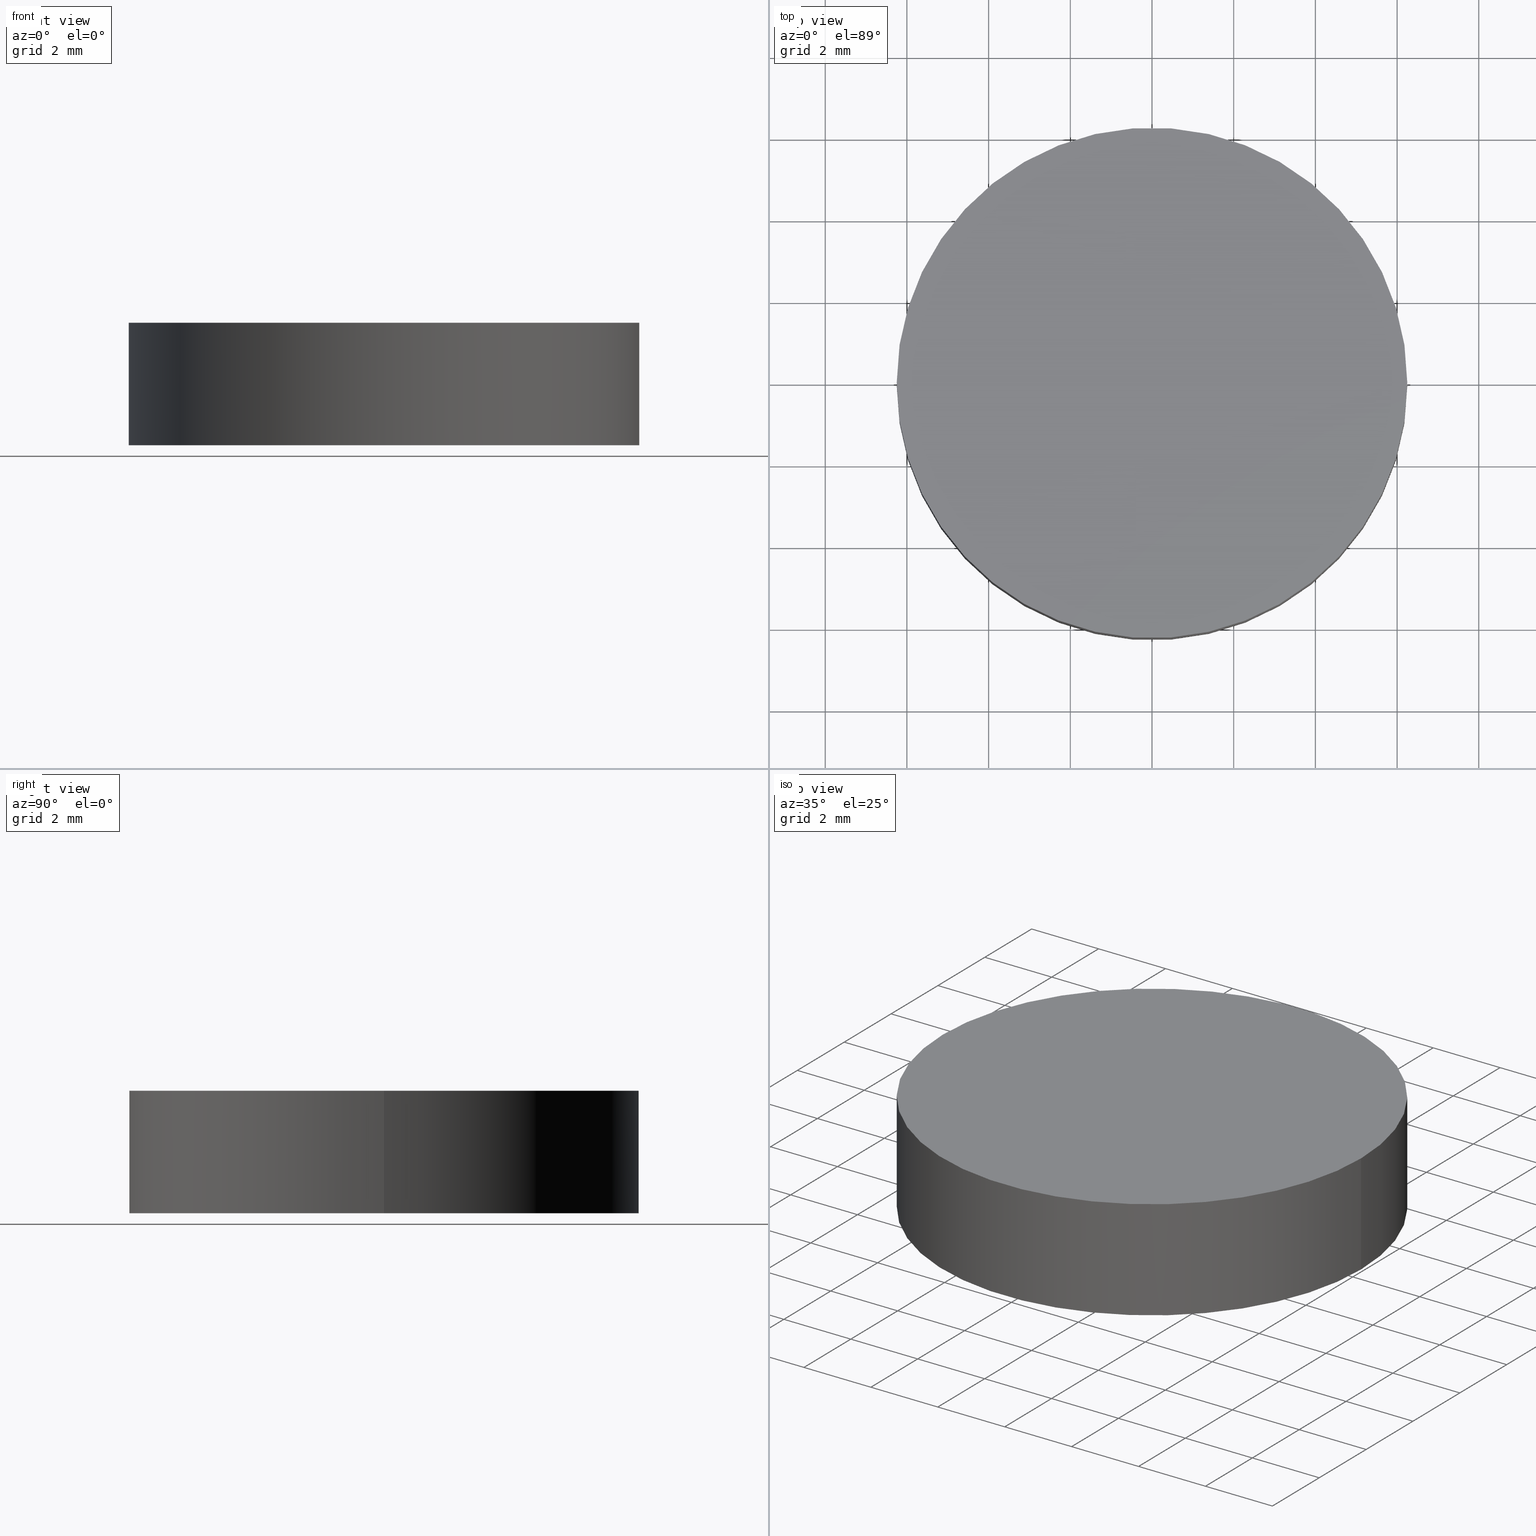
[diagram: canonical four-view strip — front | top / right | iso, engineering-drawing reading convention]
A machine part, canonical four-view strip (front | top / right | iso — engineering-drawing reading convention). The complete STEP part file that produces these views, byte-faithful:
ISO-10303-21;
HEADER;
FILE_DESCRIPTION (( 'STEP AP214' ),
    '1' );
FILE_NAME ('185002.STEP',
    '2019-07-12T01:28:49',
    ( 'user' ),
    ( '΢���й�' ),
    'SwSTEP 2.0',
    'SolidWorks 2016',
    '' );
FILE_SCHEMA (( 'AUTOMOTIVE_DESIGN' ));
ENDSEC;

DATA;
#1 = ADVANCED_FACE ( 'NONE', ( #67 ), #134, .T. ) ;
#2 = SURFACE_STYLE_FILL_AREA ( #46 ) ;
#3 = DIRECTION ( 'NONE',  ( 0.0000000000000000000, 0.0000000000000000000, 1.000000000000000000 ) ) ;
#4 = VERTEX_POINT ( 'NONE', #105 ) ;
#5 = CARTESIAN_POINT ( 'NONE',  ( 0.0000000000000000000, 0.0000000000000000000, 0.0000000000000000000 ) ) ;
#6 = STYLED_ITEM ( 'NONE', ( #85 ), #49 ) ;
#7 = SURFACE_STYLE_USAGE ( .BOTH. , #117 ) ;
#8 = CARTESIAN_POINT ( 'NONE',  ( 0.0000000000000000000, 0.0000000000000000000, 0.0000000000000000000 ) ) ;
#9 = ORIENTED_EDGE ( 'NONE', *, *, #127, .F. ) ;
#10 = AXIS2_PLACEMENT_3D ( 'NONE', #18, #26, #106 ) ;
#11 = FACE_OUTER_BOUND ( 'NONE', #59, .T. ) ;
#12 = AXIS2_PLACEMENT_3D ( 'NONE', #8, #66, #135 ) ;
#13 = UNCERTAINTY_MEASURE_WITH_UNIT (LENGTH_MEASURE( 1.000000000000000100E-005 ), #23, 'distance_accuracy_value', 'NONE');
#14 = CARTESIAN_POINT ( 'NONE',  ( 6.250000000000000000, 7.654042494670957600E-016, 3.000000000000000000 ) ) ;
#15 =( GEOMETRIC_REPRESENTATION_CONTEXT ( 3 ) GLOBAL_UNCERTAINTY_ASSIGNED_CONTEXT ( ( #70 ) ) GLOBAL_UNIT_ASSIGNED_CONTEXT ( ( #17, #76, #44 ) ) REPRESENTATION_CONTEXT ( 'NONE', 'WORKASPACE' ) );
#16 =( NAMED_UNIT ( * ) SI_UNIT ( $, .STERADIAN. ) SOLID_ANGLE_UNIT ( ) );
#17 =( LENGTH_UNIT ( ) NAMED_UNIT ( * ) SI_UNIT ( .MILLI., .METRE. ) );
#18 = CARTESIAN_POINT ( 'NONE',  ( 0.0000000000000000000, 0.0000000000000000000, 3.000000000000000000 ) ) ;
#19 = CARTESIAN_POINT ( 'NONE',  ( 6.250000000000000000, 7.654042494670957600E-016, 3.000000000000000000 ) ) ;
#20 = DIRECTION ( 'NONE',  ( -0.0000000000000000000, -0.0000000000000000000, -1.000000000000000000 ) ) ;
#21 = AXIS2_PLACEMENT_3D ( 'NONE', #107, #95, #43 ) ;
#22 = ORIENTED_EDGE ( 'NONE', *, *, #38, .F. ) ;
#23 =( LENGTH_UNIT ( ) NAMED_UNIT ( * ) SI_UNIT ( .MILLI., .METRE. ) );
#24 = APPLICATION_PROTOCOL_DEFINITION ( 'draft international standard', 'automotive_design', 1998, #50 ) ;
#25 = ORIENTED_EDGE ( 'NONE', *, *, #29, .F. ) ;
#26 = DIRECTION ( 'NONE',  ( -0.0000000000000000000, -0.0000000000000000000, -1.000000000000000000 ) ) ;
#27 = PRESENTATION_LAYER_ASSIGNMENT (  '', '', ( #6 ) ) ;
#28 = PLANE ( 'NONE',  #102 ) ;
#29 = EDGE_CURVE ( 'NONE', #91, #36, #120, .T. ) ;
#30 =( NAMED_UNIT ( * ) PLANE_ANGLE_UNIT ( ) SI_UNIT ( $, .RADIAN. ) );
#31 = DIRECTION ( 'NONE',  ( 1.000000000000000000, 0.0000000000000000000, 0.0000000000000000000 ) ) ;
#32 = ORIENTED_EDGE ( 'NONE', *, *, #29, .T. ) ;
#33 = STYLED_ITEM ( 'NONE', ( #71 ), #47 ) ;
#34 = CLOSED_SHELL ( 'NONE', ( #136, #128, #1, #109 ) ) ;
#35 = VECTOR ( 'NONE', #20, 1000.000000000000000 ) ;
#36 = VERTEX_POINT ( 'NONE', #51 ) ;
#37 = MECHANICAL_DESIGN_GEOMETRIC_PRESENTATION_REPRESENTATION (  '', ( #6 ), #90 ) ;
#38 = EDGE_CURVE ( 'NONE', #62, #4, #86, .T. ) ;
#39 = CIRCLE ( 'NONE', #74, 6.250000000000000000 ) ;
#40 = PRODUCT_DEFINITION_CONTEXT ( 'detailed design', #60, 'design' ) ;
#41 = DIRECTION ( 'NONE',  ( 1.000000000000000000, 0.0000000000000000000, -0.0000000000000000000 ) ) ;
#42 = SURFACE_SIDE_STYLE ('',( #99 ) ) ;
#43 = DIRECTION ( 'NONE',  ( -1.000000000000000000, 0.0000000000000000000, 0.0000000000000000000 ) ) ;
#44 =( NAMED_UNIT ( * ) SI_UNIT ( $, .STERADIAN. ) SOLID_ANGLE_UNIT ( ) );
#45 = CARTESIAN_POINT ( 'NONE',  ( 0.0000000000000000000, 0.0000000000000000000, 3.000000000000000000 ) ) ;
#46 = FILL_AREA_STYLE ('',( #126 ) ) ;
#47 = ADVANCED_BREP_SHAPE_REPRESENTATION ( '185002', ( #49, #72 ), #15 ) ;
#48 = EDGE_CURVE ( 'NONE', #36, #62, #61, .T. ) ;
#49 = MANIFOLD_SOLID_BREP ( '͹̨-����1', #34 ) ;
#50 = APPLICATION_CONTEXT ( 'automotive_design' ) ;
#51 = CARTESIAN_POINT ( 'NONE',  ( -6.250000000000000000, 0.0000000000000000000, 3.000000000000000000 ) ) ;
#52 = DIRECTION ( 'NONE',  ( 1.000000000000000000, 0.0000000000000000000, 0.0000000000000000000 ) ) ;
#53 = DIRECTION ( 'NONE',  ( 1.000000000000000000, 0.0000000000000000000, -0.0000000000000000000 ) ) ;
#54 = AXIS2_PLACEMENT_3D ( 'NONE', #45, #82, #31 ) ;
#55 = CARTESIAN_POINT ( 'NONE',  ( 0.0000000000000000000, 0.0000000000000000000, 0.0000000000000000000 ) ) ;
#56 = CYLINDRICAL_SURFACE ( 'NONE', #21, 6.250000000000000000 ) ;
#57 = ORIENTED_EDGE ( 'NONE', *, *, #38, .T. ) ;
#58 = PRESENTATION_LAYER_ASSIGNMENT (  '', '', ( #33 ) ) ;
#59 = EDGE_LOOP ( 'NONE', ( #25, #137, #79, #115 ) ) ;
#60 = APPLICATION_CONTEXT ( 'automotive_design' ) ;
#61 = LINE ( 'NONE', #77, #35 ) ;
#62 = VERTEX_POINT ( 'NONE', #130 ) ;
#63 = DIRECTION ( 'NONE',  ( -0.0000000000000000000, -0.0000000000000000000, -1.000000000000000000 ) ) ;
#64 = DIRECTION ( 'NONE',  ( 0.0000000000000000000, 0.0000000000000000000, 1.000000000000000000 ) ) ;
#65 = PRODUCT_DEFINITION ( 'δ֪', '', #108, #40 ) ;
#66 = DIRECTION ( 'NONE',  ( 0.0000000000000000000, 0.0000000000000000000, 1.000000000000000000 ) ) ;
#67 = FACE_OUTER_BOUND ( 'NONE', #118, .T. ) ;
#68 = ORIENTED_EDGE ( 'NONE', *, *, #48, .T. ) ;
#69 = EDGE_CURVE ( 'NONE', #4, #62, #83, .T. ) ;
#70 = UNCERTAINTY_MEASURE_WITH_UNIT (LENGTH_MEASURE( 1.000000000000000100E-005 ), #17, 'distance_accuracy_value', 'NONE');
#71 = PRESENTATION_STYLE_ASSIGNMENT (( #104 ) ) ;
#72 = AXIS2_PLACEMENT_3D ( 'NONE', #5, #3, #75 ) ;
#73 = VECTOR ( 'NONE', #63, 1000.000000000000000 ) ;
#74 = AXIS2_PLACEMENT_3D ( 'NONE', #114, #93, #52 ) ;
#75 = DIRECTION ( 'NONE',  ( 1.000000000000000000, 0.0000000000000000000, 0.0000000000000000000 ) ) ;
#76 =( NAMED_UNIT ( * ) PLANE_ANGLE_UNIT ( ) SI_UNIT ( $, .RADIAN. ) );
#77 = CARTESIAN_POINT ( 'NONE',  ( -6.250000000000000000, 0.0000000000000000000, 3.000000000000000000 ) ) ;
#78 = FILL_AREA_STYLE_COLOUR ( '', #124 ) ;
#79 = ORIENTED_EDGE ( 'NONE', *, *, #69, .T. ) ;
#80 = DIRECTION ( 'NONE',  ( 1.000000000000000000, 0.0000000000000000000, 0.0000000000000000000 ) ) ;
#81 =( NAMED_UNIT ( * ) SI_UNIT ( $, .STERADIAN. ) SOLID_ANGLE_UNIT ( ) );
#82 = DIRECTION ( 'NONE',  ( 0.0000000000000000000, 0.0000000000000000000, 1.000000000000000000 ) ) ;
#83 = CIRCLE ( 'NONE', #84, 6.250000000000000000 ) ;
#84 = AXIS2_PLACEMENT_3D ( 'NONE', #96, #64, #80 ) ;
#85 = PRESENTATION_STYLE_ASSIGNMENT (( #7 ) ) ;
#86 = CIRCLE ( 'NONE', #12, 6.250000000000000000 ) ;
#87 = ORIENTED_EDGE ( 'NONE', *, *, #119, .F. ) ;
#88 =( GEOMETRIC_REPRESENTATION_CONTEXT ( 3 ) GLOBAL_UNCERTAINTY_ASSIGNED_CONTEXT ( ( #13 ) ) GLOBAL_UNIT_ASSIGNED_CONTEXT ( ( #23, #92, #16 ) ) REPRESENTATION_CONTEXT ( 'NONE', 'WORKASPACE' ) );
#89 = UNCERTAINTY_MEASURE_WITH_UNIT (LENGTH_MEASURE( 1.000000000000000100E-005 ), #97, 'distance_accuracy_value', 'NONE');
#90 =( GEOMETRIC_REPRESENTATION_CONTEXT ( 3 ) GLOBAL_UNCERTAINTY_ASSIGNED_CONTEXT ( ( #89 ) ) GLOBAL_UNIT_ASSIGNED_CONTEXT ( ( #97, #30, #81 ) ) REPRESENTATION_CONTEXT ( 'NONE', 'WORKASPACE' ) );
#91 = VERTEX_POINT ( 'NONE', #14 ) ;
#92 =( NAMED_UNIT ( * ) PLANE_ANGLE_UNIT ( ) SI_UNIT ( $, .RADIAN. ) );
#93 = DIRECTION ( 'NONE',  ( 0.0000000000000000000, 0.0000000000000000000, 1.000000000000000000 ) ) ;
#94 = FACE_OUTER_BOUND ( 'NONE', #140, .T. ) ;
#95 = DIRECTION ( 'NONE',  ( -0.0000000000000000000, -0.0000000000000000000, -1.000000000000000000 ) ) ;
#96 = CARTESIAN_POINT ( 'NONE',  ( 0.0000000000000000000, 0.0000000000000000000, 0.0000000000000000000 ) ) ;
#97 =( LENGTH_UNIT ( ) NAMED_UNIT ( * ) SI_UNIT ( .MILLI., .METRE. ) );
#98 = ORIENTED_EDGE ( 'NONE', *, *, #69, .F. ) ;
#99 = SURFACE_STYLE_FILL_AREA ( #125 ) ;
#100 = MECHANICAL_DESIGN_GEOMETRIC_PRESENTATION_REPRESENTATION (  '', ( #33 ), #88 ) ;
#101 = PRODUCT ( '185002', '185002', '', ( #133 ) ) ;
#102 = AXIS2_PLACEMENT_3D ( 'NONE', #55, #116, #53 ) ;
#103 = DIRECTION ( 'NONE',  ( 0.0000000000000000000, 0.0000000000000000000, 1.000000000000000000 ) ) ;
#104 = SURFACE_STYLE_USAGE ( .BOTH. , #42 ) ;
#105 = CARTESIAN_POINT ( 'NONE',  ( 6.250000000000000000, 7.654042494670957600E-016, 0.0000000000000000000 ) ) ;
#106 = DIRECTION ( 'NONE',  ( -1.000000000000000000, 0.0000000000000000000, 0.0000000000000000000 ) ) ;
#107 = CARTESIAN_POINT ( 'NONE',  ( 0.0000000000000000000, 0.0000000000000000000, 3.000000000000000000 ) ) ;
#108 = PRODUCT_DEFINITION_FORMATION_WITH_SPECIFIED_SOURCE ( '�κ�', '', #101, .NOT_KNOWN. ) ;
#109 = ADVANCED_FACE ( 'NONE', ( #131 ), #28, .F. ) ;
#110 = EDGE_LOOP ( 'NONE', ( #22, #98 ) ) ;
#111 = CARTESIAN_POINT ( 'NONE',  ( 0.0000000000000000000, 0.0000000000000000000, 3.000000000000000000 ) ) ;
#112 = PRODUCT_RELATED_PRODUCT_CATEGORY ( 'part', '', ( #101 ) ) ;
#113 = COLOUR_RGB ( '',1.000000000000000000, 1.000000000000000000, 1.000000000000000000 ) ;
#114 = CARTESIAN_POINT ( 'NONE',  ( 0.0000000000000000000, 0.0000000000000000000, 3.000000000000000000 ) ) ;
#115 = ORIENTED_EDGE ( 'NONE', *, *, #48, .F. ) ;
#116 = DIRECTION ( 'NONE',  ( 0.0000000000000000000, 0.0000000000000000000, 1.000000000000000000 ) ) ;
#117 = SURFACE_SIDE_STYLE ('',( #2 ) ) ;
#118 = EDGE_LOOP ( 'NONE', ( #139, #32 ) ) ;
#119 = EDGE_CURVE ( 'NONE', #36, #91, #39, .T. ) ;
#120 = CIRCLE ( 'NONE', #54, 6.250000000000000000 ) ;
#121 = CYLINDRICAL_SURFACE ( 'NONE', #10, 6.250000000000000000 ) ;
#122 = LINE ( 'NONE', #19, #73 ) ;
#123 = APPLICATION_PROTOCOL_DEFINITION ( 'draft international standard', 'automotive_design', 1998, #60 ) ;
#124 = COLOUR_RGB ( '',1.000000000000000000, 1.000000000000000000, 1.000000000000000000 ) ;
#125 = FILL_AREA_STYLE ('',( #78 ) ) ;
#126 = FILL_AREA_STYLE_COLOUR ( '', #113 ) ;
#127 = EDGE_CURVE ( 'NONE', #91, #4, #122, .T. ) ;
#128 = ADVANCED_FACE ( 'NONE', ( #94 ), #56, .T. ) ;
#129 = SHAPE_DEFINITION_REPRESENTATION ( #132, #47 ) ;
#130 = CARTESIAN_POINT ( 'NONE',  ( -6.250000000000000000, 0.0000000000000000000, 0.0000000000000000000 ) ) ;
#131 = FACE_OUTER_BOUND ( 'NONE', #110, .T. ) ;
#132 = PRODUCT_DEFINITION_SHAPE ( 'NONE', 'NONE',  #65 ) ;
#133 = PRODUCT_CONTEXT ( 'NONE', #50, 'mechanical' ) ;
#134 = PLANE ( 'NONE',  #138 ) ;
#135 = DIRECTION ( 'NONE',  ( 1.000000000000000000, 0.0000000000000000000, 0.0000000000000000000 ) ) ;
#136 = ADVANCED_FACE ( 'NONE', ( #11 ), #121, .T. ) ;
#137 = ORIENTED_EDGE ( 'NONE', *, *, #127, .T. ) ;
#138 = AXIS2_PLACEMENT_3D ( 'NONE', #111, #103, #41 ) ;
#139 = ORIENTED_EDGE ( 'NONE', *, *, #119, .T. ) ;
#140 = EDGE_LOOP ( 'NONE', ( #9, #87, #68, #57 ) ) ;
ENDSEC;
END-ISO-10303-21;
